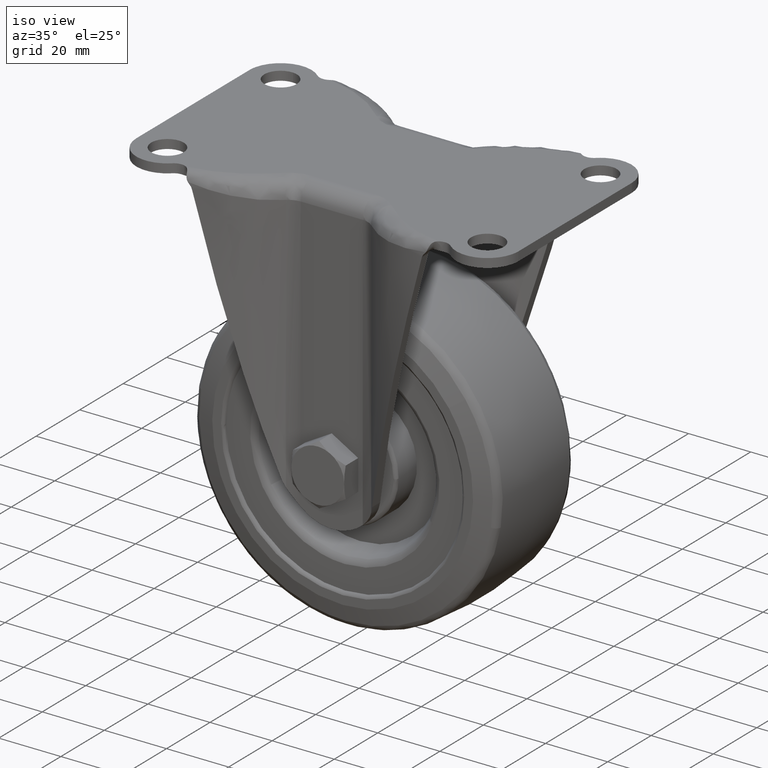
[diagram: clean part render]
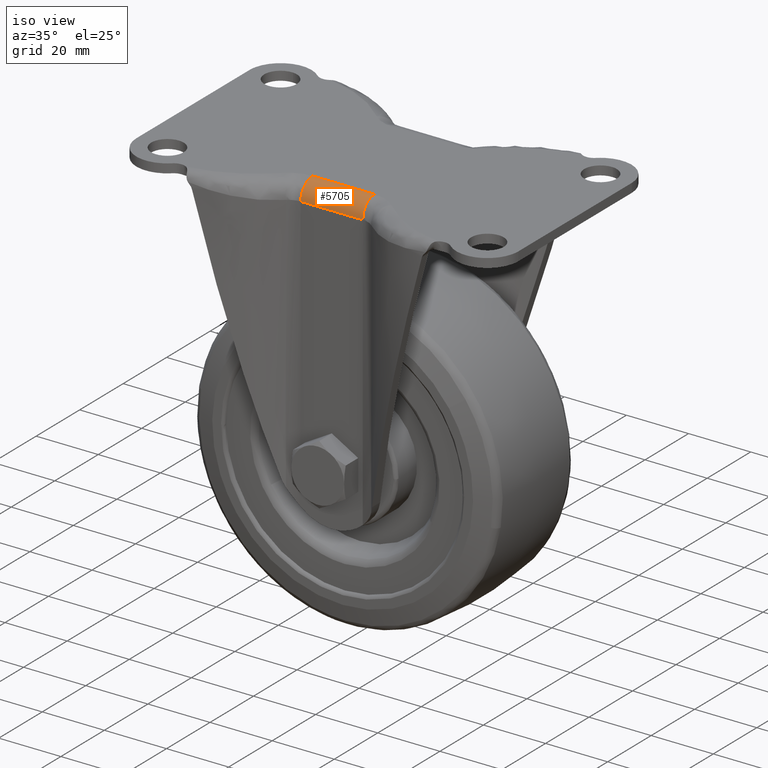
[diagram: same view with one face highlighted and labeled with its STEP entity id]
A machine part, iso view. The second image highlights one B-rep face of the part: STEP entity #5705.
In plain terms, the highlighted face is a freeform B-spline surface patch.
Its self-contained STEP definition (entity closure, byte-faithful):
#5004=CARTESIAN_POINT('',(9.973044000000000,-24.0,-5.400000000000000));
#5005=VERTEX_POINT('',#5004);
#5054=CARTESIAN_POINT('',(-9.973043655194129,-24.0,-5.400000000000000));
#5055=VERTEX_POINT('',#5054);
#5056=CARTESIAN_POINT('',(9.973044000000000,-24.0,-5.400000000000000));
#5057=CARTESIAN_POINT('',(-9.973043655194129,-24.0,-5.400000000000000));
#5058=QUASI_UNIFORM_CURVE('',1,(#5056,#5057),.UNSPECIFIED.,.F.,.U.);
#5059=EDGE_CURVE('',#5005,#5055,#5058,.T.);
#5634=CARTESIAN_POINT('',(-9.973043655194140,-18.600000000000001,0.0));
#5635=VERTEX_POINT('',#5634);
#5636=CARTESIAN_POINT('',(-9.973043655194129,-24.0,-5.400000000000000));
#5637=CARTESIAN_POINT('',(-9.973043655194129,-23.999999999999996,0.0));
#5638=CARTESIAN_POINT('',(-9.973043655194129,-18.600000000000001,0.0));
#5646=(BOUNDED_CURVE()B_SPLINE_CURVE(2,(#5636,#5637,#5638),.UNSPECIFIED.,.F.,.U.)CURVE()GEOMETRIC_REPRESENTATION_ITEM()QUASI_UNIFORM_CURVE()RATIONAL_B_SPLINE_CURVE((1.0,0.707106781186548,1.0))REPRESENTATION_ITEM(''));
#5647=EDGE_CURVE('',#5055,#5635,#5646,.T.);
#5667=CARTESIAN_POINT('',(10.471696538379970,-18.458644479137480,-0.001850445131993));
#5668=CARTESIAN_POINT('',(-10.484162160033490,-18.458644479137480,-0.001850445131993));
#5669=CARTESIAN_POINT('',(10.471696538379971,-24.404917922995473,0.153858204897820));
#5670=CARTESIAN_POINT('',(-10.484162160033492,-24.404917922995473,0.153858204897820));
#5671=CARTESIAN_POINT('',(10.471696538379975,-23.986632188656376,-5.779728408380311));
#5672=CARTESIAN_POINT('',(-10.484162160033495,-23.986632188656376,-5.779728408380311));
#5680=(BOUNDED_SURFACE()B_SPLINE_SURFACE(1,2,((#5667,#5669,#5671),(#5668,#5670,#5672)),.UNSPECIFIED.,.F.,.F.,.U.)B_SPLINE_SURFACE_WITH_KNOTS((2,2),(3,3),(0.0,20.955858698413468),(0.0,9.564168658077170),.UNSPECIFIED.)GEOMETRIC_REPRESENTATION_ITEM()RATIONAL_B_SPLINE_SURFACE(((1.0,0.670944223154768,0.996392648609106),(1.0,0.670944223154768,0.996392648609106)))REPRESENTATION_ITEM('')SURFACE());
#5681=CARTESIAN_POINT('',(9.973044338536701,-18.600000000000001,0.0));
#5682=VERTEX_POINT('',#5681);
#5683=CARTESIAN_POINT('',(9.973044000000000,-24.0,-5.400000000000000));
#5684=CARTESIAN_POINT('',(9.973044000000099,-23.999999999999982,0.0));
#5685=CARTESIAN_POINT('',(9.973044338536701,-18.600000000000001,0.0));
#5693=(BOUNDED_CURVE()B_SPLINE_CURVE(2,(#5683,#5684,#5685),.UNSPECIFIED.,.F.,.U.)CURVE()GEOMETRIC_REPRESENTATION_ITEM()QUASI_UNIFORM_CURVE()RATIONAL_B_SPLINE_CURVE((1.0,0.707106781186548,1.0))REPRESENTATION_ITEM(''));
#5694=EDGE_CURVE('',#5005,#5682,#5693,.T.);
#5695=ORIENTED_EDGE('',*,*,#5694,.T.);
#5696=CARTESIAN_POINT('',(-9.973043655194140,-18.600000000000001,0.0));
#5697=CARTESIAN_POINT('',(9.973044338536701,-18.600000000000001,0.0));
#5698=QUASI_UNIFORM_CURVE('',1,(#5696,#5697),.UNSPECIFIED.,.F.,.U.);
#5699=EDGE_CURVE('',#5635,#5682,#5698,.T.);
#5700=ORIENTED_EDGE('',*,*,#5699,.F.);
#5701=ORIENTED_EDGE('',*,*,#5647,.F.);
#5702=ORIENTED_EDGE('',*,*,#5059,.F.);
#5703=EDGE_LOOP('',(#5695,#5700,#5701,#5702));
#5704=FACE_OUTER_BOUND('',#5703,.T.);
#5705=ADVANCED_FACE('',(#5704),#5680,.T.);